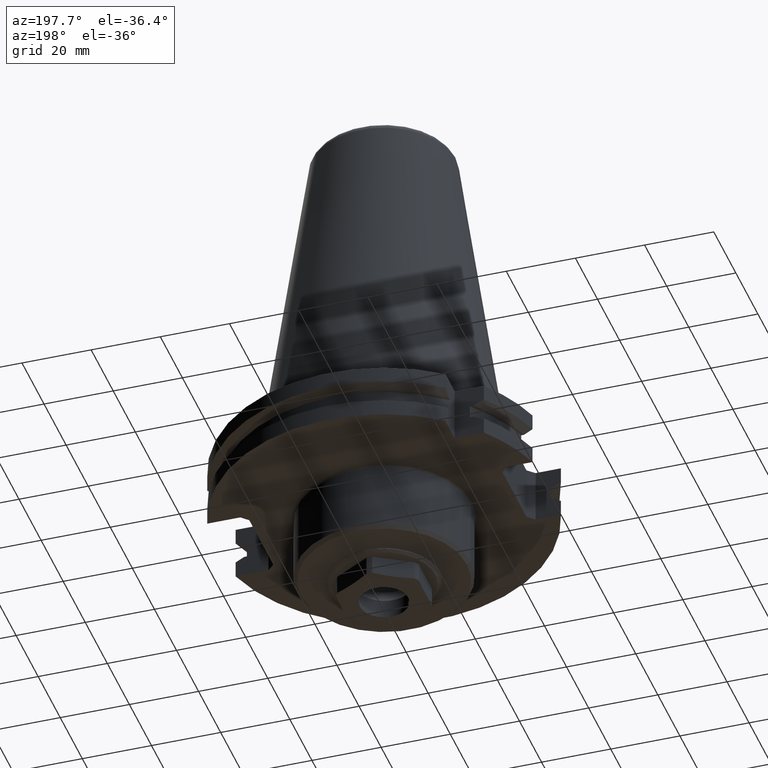
[diagram: clean part render]
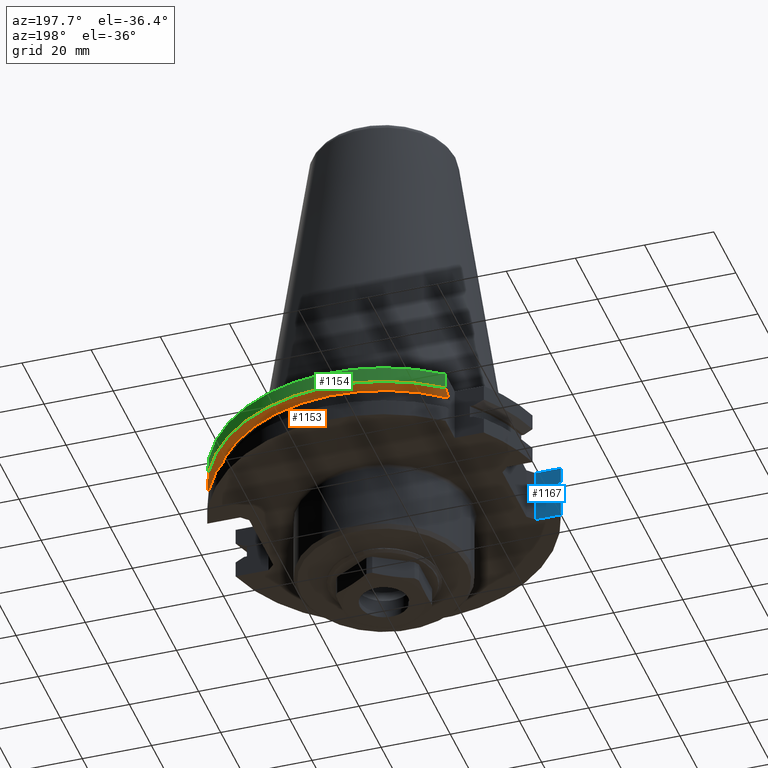
[diagram: same view with three faces highlighted in distinct colors, each labeled with its STEP entity id]
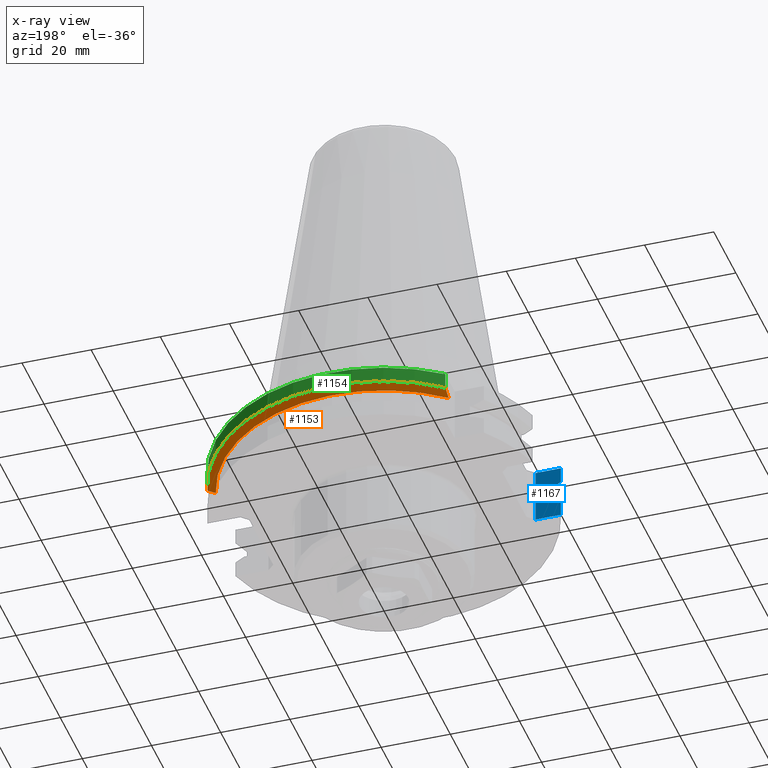
[diagram: x-ray of the same camera — body ghosted, the three highlighted faces saturated]
A machine part, auxiliary view with three faces highlighted in distinct colors.
The next image is the same camera in x-ray (body ghosted, the three faces saturated) — at least one of them is partly hidden behind the body in this view.
Their STEP definitions:

[orange] entity #1153 — the highlighted conical surface has half-angle 60 deg.
#198=B_SPLINE_CURVE_WITH_KNOTS('',3,(#1785,#1786,#1787,#1788),
 .UNSPECIFIED.,.F.,.F.,(4,4),(0.0324738484753094,0.0358272613995686),
 .UNSPECIFIED.);
#199=B_SPLINE_CURVE_WITH_KNOTS('',3,(#1792,#1793,#1794,#1795),
 .UNSPECIFIED.,.F.,.F.,(4,4),(0.0206077587212824,0.0234303424313697),
 .UNSPECIFIED.);
#241=CONICAL_SURFACE('',#1254,46.3747448887957,1.0471975511966);
#302=ORIENTED_EDGE('',*,*,#624,.F.);
#303=ORIENTED_EDGE('',*,*,#625,.T.);
#304=ORIENTED_EDGE('',*,*,#626,.T.);
#305=ORIENTED_EDGE('',*,*,#622,.F.);
#622=EDGE_CURVE('',#781,#782,#886,.T.);
#624=EDGE_CURVE('',#783,#781,#198,.T.);
#625=EDGE_CURVE('',#783,#784,#887,.T.);
#626=EDGE_CURVE('',#784,#782,#199,.T.);
#781=VERTEX_POINT('',#1780);
#782=VERTEX_POINT('',#1782);
#783=VERTEX_POINT('',#1789);
#784=VERTEX_POINT('',#1791);
#886=CIRCLE('',#1253,46.3747448887957);
#887=CIRCLE('',#1255,48.75);
#945=EDGE_LOOP('',(#302,#303,#304,#305));
#1035=FACE_BOUND('',#945,.T.);
#1153=ADVANCED_FACE('',(#1035),#241,.T.);
#1253=AXIS2_PLACEMENT_3D('',#1781,#1423,#1424);
#1254=AXIS2_PLACEMENT_3D('',#1784,#1426,#1427);
#1255=AXIS2_PLACEMENT_3D('',#1790,#1428,#1429);
#1423=DIRECTION('',(0.,0.,-1.));
#1424=DIRECTION('',(-1.,0.,0.));
#1426=DIRECTION('',(0.,0.,1.));
#1427=DIRECTION('',(1.,0.,0.));
#1428=DIRECTION('',(0.,0.,-1.));
#1429=DIRECTION('',(-1.,0.,0.));
#1780=CARTESIAN_POINT('',(-30.,35.3640631644736,-9.22375891365622));
#1781=CARTESIAN_POINT('',(0.,0.,-9.22375891365622));
#1782=CARTESIAN_POINT('',(44.5588875927225,12.85,-9.22375891365622));
#1784=CARTESIAN_POINT('',(0.,0.,-9.22375891365622));
#1785=CARTESIAN_POINT('',(-30.,38.4260653723485,-7.85240473580835));
#1786=CARTESIAN_POINT('',(-30.,37.4080776005128,-8.31567372630066));
#1787=CARTESIAN_POINT('',(-30.,36.3870332268759,-8.77337494776695));
#1788=CARTESIAN_POINT('',(-30.,35.3640631644736,-9.22375891365622));
#1789=CARTESIAN_POINT('',(-30.,38.4260653723485,-7.85240473580835));
#1790=CARTESIAN_POINT('',(0.,0.,-7.85240473580835));
#1791=CARTESIAN_POINT('',(47.025950282796,12.85,-7.85240473580835));
#1792=CARTESIAN_POINT('',(47.025950282796,12.85,-7.85240473580835));
#1793=CARTESIAN_POINT('',(46.2039634008729,12.85,-8.31019570346604));
#1794=CARTESIAN_POINT('',(45.3816279977281,12.85,-8.76734906693906));
#1795=CARTESIAN_POINT('',(44.5588875927225,12.85,-9.22375891365621));

[blue] entity #1167 — the highlighted planar face has unit normal (-0, 1, 0).
#28=LINE('',#1711,#110);
#30=LINE('',#1717,#112);
#32=LINE('',#1723,#114);
#34=LINE('',#1741,#116);
#48=LINE('',#1816,#130);
#72=LINE('',#1895,#154);
#74=LINE('',#1899,#156);
#75=LINE('',#1901,#157);
#110=VECTOR('',#1375,1000.);
#112=VECTOR('',#1381,1000.);
#114=VECTOR('',#1387,1000.);
#116=VECTOR('',#1397,1000.);
#130=VECTOR('',#1445,1000.);
#154=VECTOR('',#1505,1000.);
#156=VECTOR('',#1509,1000.);
#157=VECTOR('',#1510,1000.);
#192=B_SPLINE_CURVE_WITH_KNOTS('',3,(#1702,#1703,#1704,#1705),
 .UNSPECIFIED.,.F.,.F.,(4,4),(0.0157719633417457,0.0185944837533826),
 .UNSPECIFIED.);
#194=B_SPLINE_CURVE_WITH_KNOTS('',3,(#1732,#1733,#1734,#1735),
 .UNSPECIFIED.,.F.,.F.,(4,4),(0.0150090466185369,0.0178316206066893),
 .UNSPECIFIED.);
#377=ORIENTED_EDGE('',*,*,#673,.F.);
#378=ORIENTED_EDGE('',*,*,#593,.F.);
#379=ORIENTED_EDGE('',*,*,#596,.F.);
#380=ORIENTED_EDGE('',*,*,#599,.F.);
#381=ORIENTED_EDGE('',*,*,#602,.F.);
#382=ORIENTED_EDGE('',*,*,#605,.F.);
#383=ORIENTED_EDGE('',*,*,#608,.F.);
#384=ORIENTED_EDGE('',*,*,#636,.F.);
#385=ORIENTED_EDGE('',*,*,#671,.F.);
#386=ORIENTED_EDGE('',*,*,#674,.F.);
#593=EDGE_CURVE('',#760,#758,#192,.T.);
#596=EDGE_CURVE('',#762,#760,#28,.T.);
#599=EDGE_CURVE('',#764,#762,#30,.T.);
#602=EDGE_CURVE('',#766,#764,#32,.T.);
#605=EDGE_CURVE('',#768,#766,#194,.T.);
#608=EDGE_CURVE('',#770,#768,#34,.T.);
#636=EDGE_CURVE('',#793,#770,#48,.T.);
#671=EDGE_CURVE('',#815,#793,#72,.T.);
#673=EDGE_CURVE('',#758,#816,#74,.T.);
#674=EDGE_CURVE('',#816,#815,#75,.T.);
#758=VERTEX_POINT('',#1694);
#760=VERTEX_POINT('',#1701);
#762=VERTEX_POINT('',#1710);
#764=VERTEX_POINT('',#1716);
#766=VERTEX_POINT('',#1722);
#768=VERTEX_POINT('',#1731);
#770=VERTEX_POINT('',#1740);
#793=VERTEX_POINT('',#1815);
#815=VERTEX_POINT('',#1896);
#816=VERTEX_POINT('',#1900);
#959=EDGE_LOOP('',(#377,#378,#379,#380,#381,#382,#383,#384,#385,#386));
#1049=FACE_BOUND('',#959,.T.);
#1118=PLANE('',#1278);
#1167=ADVANCED_FACE('',(#1049),#1118,.T.);
#1278=AXIS2_PLACEMENT_3D('',#1898,#1507,#1508);
#1375=DIRECTION('',(-1.,-1.75217359979085E-16,0.));
#1381=DIRECTION('',(0.,0.,-1.));
#1387=DIRECTION('',(1.,1.75217359979085E-16,0.));
#1397=DIRECTION('',(0.,0.,-1.));
#1445=DIRECTION('',(-1.,-1.75217359979085E-16,0.));
#1505=DIRECTION('',(0.,0.,1.));
#1507=DIRECTION('',(-1.75217359979085E-16,1.,0.));
#1508=DIRECTION('',(-1.,-1.75217359979085E-16,0.));
#1509=DIRECTION('',(0.,0.,-1.));
#1510=DIRECTION('',(1.,1.75217359979085E-16,0.));
#1694=CARTESIAN_POINT('',(-47.025950282796,-12.85,-14.3475952641916));
#1701=CARTESIAN_POINT('',(-44.5588875927225,-12.85,-12.9762410863438));
#1702=CARTESIAN_POINT('',(-44.5588875927225,-12.85,-12.9762410863438));
#1703=CARTESIAN_POINT('',(-45.3816314955783,-12.85,-13.4326528734704));
#1704=CARTESIAN_POINT('',(-46.2039699110152,-12.85,-13.8898079222419));
#1705=CARTESIAN_POINT('',(-47.025950282796,-12.85,-14.3475952641916));
#1710=CARTESIAN_POINT('',(-43.7780552902936,-12.85,-12.9762410863438));
#1711=CARTESIAN_POINT('',(-45.625,-12.85,-12.9762410863438));
#1716=CARTESIAN_POINT('',(-43.7780552902936,-12.85,-9.22375891365622));
#1717=CARTESIAN_POINT('',(-43.7780552902936,-12.85,-60.));
#1722=CARTESIAN_POINT('',(-44.5588875927225,-12.85,-9.22375891365622));
#1723=CARTESIAN_POINT('',(-46.3747448887957,-12.85,-9.22375891365622));
#1731=CARTESIAN_POINT('',(-47.025950282796,-12.85,-7.85240473580835));
#1732=CARTESIAN_POINT('',(-47.025950282796,-12.85,-7.85240473580836));
#1733=CARTESIAN_POINT('',(-46.2039699110152,-12.85,-8.31019207775815));
#1734=CARTESIAN_POINT('',(-45.3816314955782,-12.85,-8.76734712652963));
#1735=CARTESIAN_POINT('',(-44.5588875927225,-12.85,-9.22375891365622));
#1740=CARTESIAN_POINT('',(-47.025950282796,-12.85,-3.2));
#1741=CARTESIAN_POINT('',(-47.025950282796,-12.85,-60.));
#1815=CARTESIAN_POINT('',(-39.7,-12.85,-3.20000000000006));
#1816=CARTESIAN_POINT('',(-34.925,-12.85,-3.2));
#1895=CARTESIAN_POINT('',(-39.7,-12.85,-189.286058572378));
#1896=CARTESIAN_POINT('',(-39.7,-12.85,-19.1));
#1898=CARTESIAN_POINT('',(-39.7,-12.85,-189.286058572378));
#1899=CARTESIAN_POINT('',(-47.025950282796,-12.85,-60.));
#1900=CARTESIAN_POINT('',(-47.025950282796,-12.85,-19.1));
#1901=CARTESIAN_POINT('',(-48.75,-12.85,-19.1));

[green] entity #1154 — the highlighted cylindrical surface (partial cylindrical patch) has radius 48.75 mm, axis along (0, 0, -1).
#41=LINE('',#1797,#123);
#42=LINE('',#1801,#124);
#123=VECTOR('',#1432,1000.);
#124=VECTOR('',#1435,1000.);
#220=CYLINDRICAL_SURFACE('',#1256,48.75);
#306=ORIENTED_EDGE('',*,*,#627,.F.);
#307=ORIENTED_EDGE('',*,*,#628,.T.);
#308=ORIENTED_EDGE('',*,*,#629,.T.);
#309=ORIENTED_EDGE('',*,*,#625,.F.);
#625=EDGE_CURVE('',#783,#784,#887,.T.);
#627=EDGE_CURVE('',#785,#783,#41,.T.);
#628=EDGE_CURVE('',#785,#786,#888,.T.);
#629=EDGE_CURVE('',#786,#784,#42,.T.);
#783=VERTEX_POINT('',#1789);
#784=VERTEX_POINT('',#1791);
#785=VERTEX_POINT('',#1798);
#786=VERTEX_POINT('',#1800);
#887=CIRCLE('',#1255,48.75);
#888=CIRCLE('',#1257,48.75);
#946=EDGE_LOOP('',(#306,#307,#308,#309));
#1036=FACE_BOUND('',#946,.T.);
#1154=ADVANCED_FACE('',(#1036),#220,.T.);
#1255=AXIS2_PLACEMENT_3D('',#1790,#1428,#1429);
#1256=AXIS2_PLACEMENT_3D('',#1796,#1430,#1431);
#1257=AXIS2_PLACEMENT_3D('',#1799,#1433,#1434);
#1428=DIRECTION('',(0.,0.,-1.));
#1429=DIRECTION('',(-1.,0.,0.));
#1430=DIRECTION('',(0.,0.,-1.));
#1431=DIRECTION('',(-1.,0.,0.));
#1432=DIRECTION('',(0.,0.,-1.));
#1433=DIRECTION('',(0.,0.,-1.));
#1434=DIRECTION('',(-1.,0.,0.));
#1435=DIRECTION('',(0.,0.,-1.));
#1789=CARTESIAN_POINT('',(-30.,38.4260653723485,-7.85240473580835));
#1790=CARTESIAN_POINT('',(0.,0.,-7.85240473580835));
#1791=CARTESIAN_POINT('',(47.025950282796,12.85,-7.85240473580835));
#1796=CARTESIAN_POINT('',(0.,0.,-60.));
#1797=CARTESIAN_POINT('',(-30.,38.4260653723485,-60.));
#1798=CARTESIAN_POINT('',(-30.,38.4260653723485,-3.2));
#1799=CARTESIAN_POINT('',(0.,0.,-3.2));
#1800=CARTESIAN_POINT('',(47.025950282796,12.85,-3.2));
#1801=CARTESIAN_POINT('',(47.025950282796,12.85,-60.));